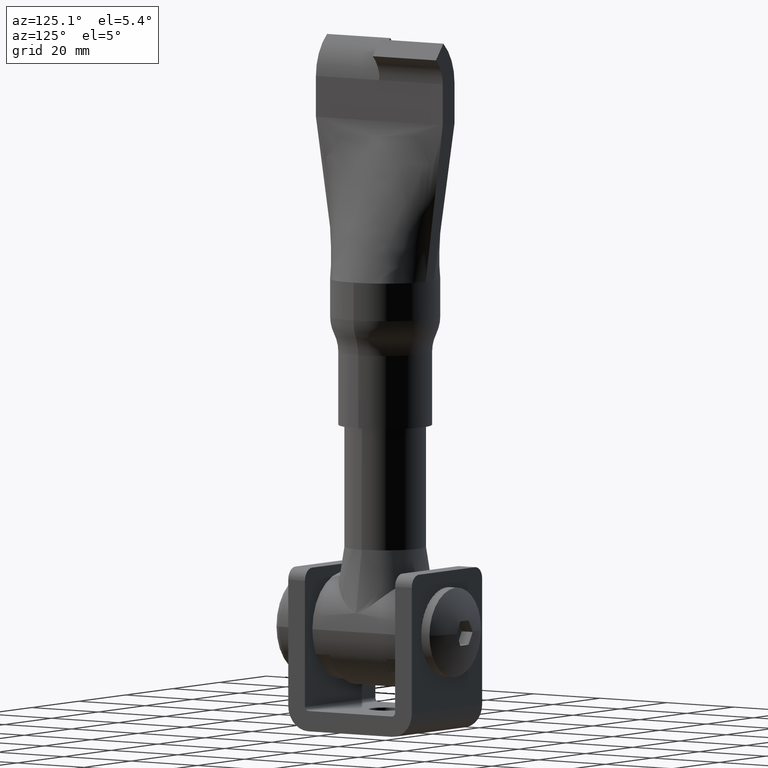
[diagram: clean part render]
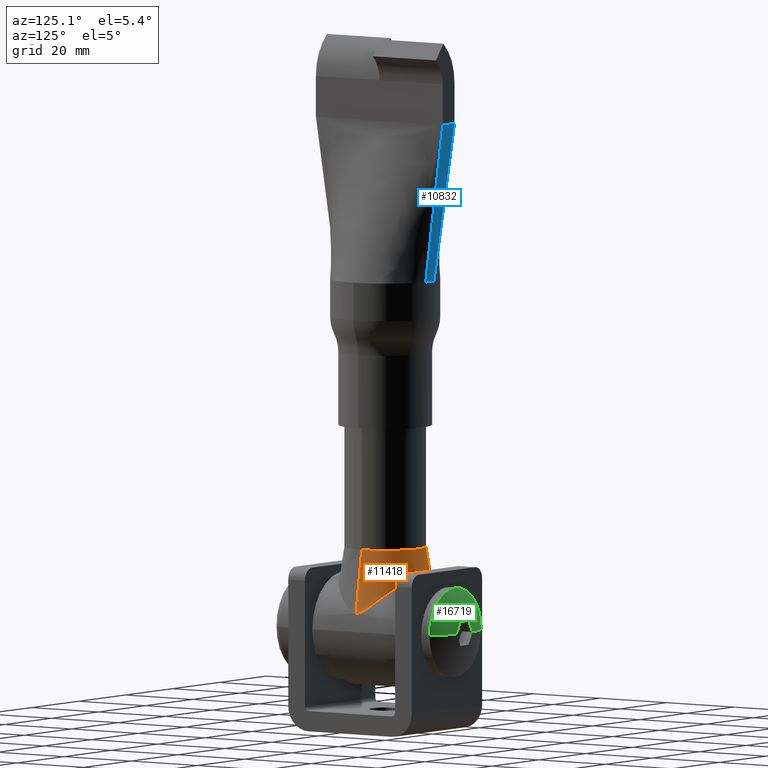
[diagram: same view with three faces highlighted in distinct colors, each labeled with its STEP entity id]
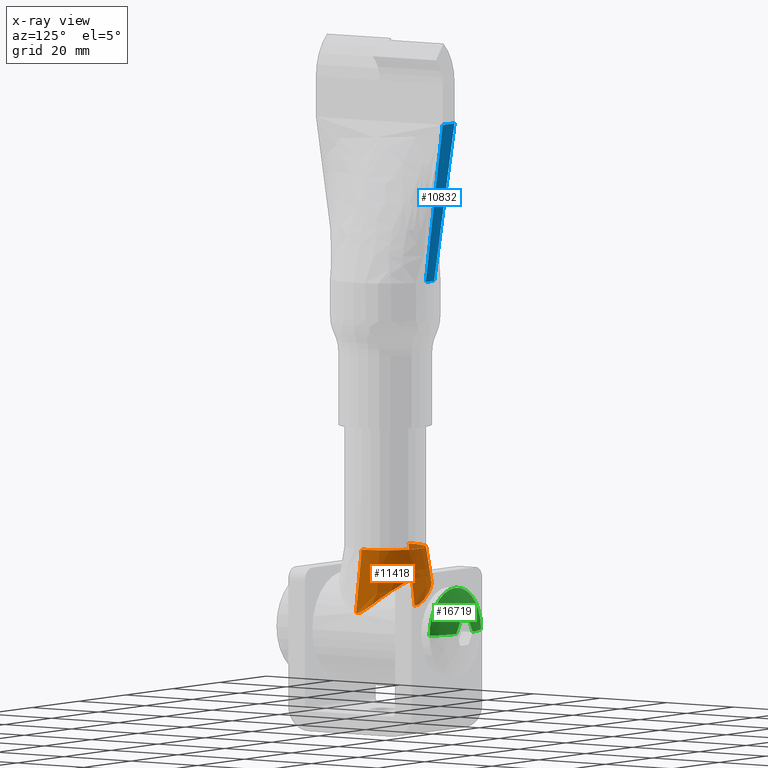
[diagram: x-ray of the same camera — body ghosted, the three highlighted faces saturated]
A machine part, auxiliary view with three faces highlighted in distinct colors.
The next image is the same camera in x-ray (body ghosted, the three faces saturated) — at least one of them is partly hidden behind the body in this view.
Their STEP definitions:

[orange] entity #11418 — the highlighted conical surface has half-angle 9 deg.
#932 = DIRECTION ( 'NONE',  ( 0.0000000000000000000, 0.0000000000000000000, 1.000000000000000000 ) ) ;
#1034 = EDGE_CURVE ( 'NONE', #21169, #16118, #8787, .T. ) ;
#1148 = ORIENTED_EDGE ( 'NONE', *, *, #19595, .T. ) ;
#1627 = CARTESIAN_POINT ( 'NONE',  ( -4.544602311022438300, 10.23950279378890100, 12.45280787592177800 ) ) ;
#1720 = CARTESIAN_POINT ( 'NONE',  ( 11.85100130225620100, 3.032713983077668800, 5.932775897503524300 ) ) ;
#1805 = CARTESIAN_POINT ( 'NONE',  ( -12.37406158305847500, 1.052926397505245600, 4.738526175261061000 ) ) ;
#1966 = CARTESIAN_POINT ( 'NONE',  ( -1.702063328757080800, 10.96232836810180100, 13.14722642212725200 ) ) ;
#2000 = CONICAL_SURFACE ( 'NONE', #16330, 10.00000000000000000, 0.1570796326794896800 ) ;
#2021 = CARTESIAN_POINT ( 'NONE',  ( 10.00000000000000000, 1.375698850997546000E-015, 19.99999999999999600 ) ) ;
#2409 = CARTESIAN_POINT ( 'NONE',  ( -10.00000000000000000, 0.0000000000000000000, 19.99999999999999600 ) ) ;
#2950 = DIRECTION ( 'NONE',  ( 1.000000000000000000, 0.0000000000000000000, 0.0000000000000000000 ) ) ;
#3076 = CARTESIAN_POINT ( 'NONE',  ( 12.43911753200677900, 0.4306870222003687000, 4.564412944056313900 ) ) ;
#3459 = VECTOR ( 'NONE', #6553, 1000.000000000000100 ) ;
#3663 = CARTESIAN_POINT ( 'NONE',  ( 3.379083786455900000, 10.62050229693041500, 12.81851273243222200 ) ) ;
#3743 = CARTESIAN_POINT ( 'NONE',  ( 9.749299883875007600, 6.581437989504199700, 8.996670868655371600 ) ) ;
#3825 = CARTESIAN_POINT ( 'NONE',  ( -12.40118306219043200, 0.8511746355173379600, 4.666485576060408900 ) ) ;
#3921 = CARTESIAN_POINT ( 'NONE',  ( 7.632689427067562700, 8.544716724632424500, 10.83688003451869100 ) ) ;
#4991 = CARTESIAN_POINT ( 'NONE',  ( 0.0000000000000000000, 0.0000000000000000000, 19.99999999999999600 ) ) ;
#5611 = CARTESIAN_POINT ( 'NONE',  ( 4.169486162967779700, 10.37587073809969600, 12.58363465157171600 ) ) ;
#5617 = ORIENTED_EDGE ( 'NONE', *, *, #14011, .F. ) ;
#5693 = CARTESIAN_POINT ( 'NONE',  ( 11.11800695409796600, 4.594444846856689900, 7.214234436448496300 ) ) ;
#5776 = CARTESIAN_POINT ( 'NONE',  ( 11.43773829093140600, 3.984819594758262100, 6.695774781425341400 ) ) ;
#5866 = CARTESIAN_POINT ( 'NONE',  ( 12.17782149461388600, 2.006033526576112000, 5.222684250916954000 ) ) ;
#5942 = CARTESIAN_POINT ( 'NONE',  ( -0.4203119860905667500, 11.06935778057705000, 13.25025303075430600 ) ) ;
#6553 = DIRECTION ( 'NONE',  ( -0.1564344650402308700, 0.0000000000000000000, -0.9876883405951376600 ) ) ;
#6602 = DIRECTION ( 'NONE',  ( 0.1564344650402308700, 1.915769668878472600E-017, -0.9876883405951376600 ) ) ;
#7611 = CARTESIAN_POINT ( 'NONE',  ( -3.365384237734505100, 10.62426435244011300, 12.82212734717941400 ) ) ;
#7701 = CARTESIAN_POINT ( 'NONE',  ( 4.558222001590339200, 10.23427922351712000, 12.44779954136557300 ) ) ;
#7789 = CARTESIAN_POINT ( 'NONE',  ( 1.723670346428816300, 10.95948449436491300, 13.14448953044926000 ) ) ;
#7867 = CARTESIAN_POINT ( 'NONE',  ( -12.44915803111114100, -1.275259665170314500E-017, 4.536624771393487500 ) ) ;
#7902 = LINE ( 'NONE', #14573, #9808 ) ;
#7944 = CARTESIAN_POINT ( 'NONE',  ( -2.960376318592690600, 10.72814672598309800, 12.92197909329218700 ) ) ;
#8787 = LINE ( 'NONE', #2409, #3459 ) ;
#8961 = CARTESIAN_POINT ( 'NONE',  ( 12.37355025305598700, 1.056222416335309100, 4.739852601841631600 ) ) ;
#9051 = DIRECTION ( 'NONE',  ( -1.000000000000000000, 0.0000000000000000000, 0.0000000000000000000 ) ) ;
#9636 = CARTESIAN_POINT ( 'NONE',  ( -6.358016981180973900, 9.399645714049253100, 11.64905286493261700 ) ) ;
#9717 = CARTESIAN_POINT ( 'NONE',  ( 10.94446728234588700, 4.893312337833277700, 7.475405305701738900 ) ) ;
#9802 = CARTESIAN_POINT ( 'NONE',  ( -5.670362507874533400, 9.769534460827573600, 12.00261745075507000 ) ) ;
#9808 = VECTOR ( 'NONE', #6602, 1000.000000000000100 ) ;
#9975 = CARTESIAN_POINT ( 'NONE',  ( -12.44915803111114300, 0.2145223900053378200, 4.536624771393484900 ) ) ;
#11177 = VERTEX_POINT ( 'NONE', #21585 ) ;
#11418 = ADVANCED_FACE ( 'NONE', ( #19605 ), #2000, .T. ) ;
#11662 = CARTESIAN_POINT ( 'NONE',  ( 12.26677646714259700, 1.637531410865290700, 5.010185849308629500 ) ) ;
#11743 = CARTESIAN_POINT ( 'NONE',  ( -10.94222508200098600, 4.897071790209802900, 7.478703330007135700 ) ) ;
#11834 = CARTESIAN_POINT ( 'NONE',  ( -11.58358415585231400, 3.675538042168864800, 6.439371375435133200 ) ) ;
#11918 = CARTESIAN_POINT ( 'NONE',  ( -12.27317210196075200, 1.643475486888445100, 4.996585639762596300 ) ) ;
#13520 = AXIS2_PLACEMENT_3D ( 'NONE', #4991, #932, #2950 ) ;
#13663 = CARTESIAN_POINT ( 'NONE',  ( 11.58436408618901900, 3.673678470798569200, 6.437901089228613900 ) ) ;
#13752 = CARTESIAN_POINT ( 'NONE',  ( -11.97288629929923200, 2.698192706927992300, 5.681366658108235200 ) ) ;
#13827 = CARTESIAN_POINT ( 'NONE',  ( -9.744454658413877400, 6.587235491668313800, 9.002012557989875300 ) ) ;
#13998 = CARTESIAN_POINT ( 'NONE',  ( 2.148712703025064100, 10.89392260614251400, 13.08139576489812800 ) ) ;
#14011 = EDGE_CURVE ( 'NONE', #23371, #21169, #17673, .T. ) ;
#14546 = ORIENTED_EDGE ( 'NONE', *, *, #1034, .F. ) ;
#14573 = CARTESIAN_POINT ( 'NONE',  ( 10.00000000000000000, 1.224646799147353300E-015, 19.99999999999999600 ) ) ;
#15118 = EDGE_CURVE ( 'NONE', #23371, #11177, #7902, .T. ) ;
#15386 = CARTESIAN_POINT ( 'NONE',  ( -10.00000000000000000, 0.0000000000000000000, 19.99999999999999600 ) ) ;
#15545 = ORIENTED_EDGE ( 'NONE', *, *, #15118, .T. ) ;
#15659 = CARTESIAN_POINT ( 'NONE',  ( 0.4361165969040643500, 11.06882726874792200, 13.24974225630710700 ) ) ;
#15747 = CARTESIAN_POINT ( 'NONE',  ( 10.57434586422092500, 5.473649158677838000, 7.990385355080641200 ) ) ;
#15828 = CARTESIAN_POINT ( 'NONE',  ( -10.57148351084965700, 5.477890078858866500, 7.994187239692665000 ) ) ;
#15908 = CARTESIAN_POINT ( 'NONE',  ( 12.12895916425058300, 2.183596132392616100, 5.335466131363846300 ) ) ;
#15989 = CARTESIAN_POINT ( 'NONE',  ( 10.37734821656450500, 5.755969445904070400, 8.244983488662962000 ) ) ;
#16118 = VERTEX_POINT ( 'NONE', #24813 ) ;
#16330 = AXIS2_PLACEMENT_3D ( 'NONE', #17196, #23094, #9051 ) ;
#16592 = B_SPLINE_CURVE_WITH_KNOTS ( 'NONE', 3,
 ( #20887, #18941, #3076, #20983, #8961, #25658, #11662, #5866, #15908, #23833, #1720, #13663, #5776, #5693, #9717, #15747, #15989, #3743, #17859, #21923, #25826, #3921, #17781, #19787, #25916, #7701, #5611, #3663, #19621, #13998, #7789, #19964, #15659, #5942, #17604, #1966, #21838, #7944, #7611, #21672, #1627, #9802, #9636, #26003, #17692, #23748, #19875, #19698, #13827, #21751, #15828, #11743, #23658, #25743, #11834, #17939, #13752, #21998, #11918, #1805, #3825, #23995, #9975, #7867 ),
 .UNSPECIFIED., .F., .F.,
 ( 4, 2, 2, 2, 2, 2, 2, 2, 2, 2, 2, 2, 2, 2, 2, 2, 2, 2, 2, 2, 2, 2, 2, 2, 2, 2, 2, 2, 2, 2, 2, 4 ),
 ( 0.03439975944442482500, 0.03504490267768117100, 0.03569004591093752300, 0.03633518914419386900, 0.03698033237745022200, 0.03827061884396291300, 0.03956090531047561100, 0.04085119177698830200, 0.04214147824350099300, 0.04472205117652637600, 0.04601233764303906700, 0.04730262410955175800, 0.04988319704257714700, 0.05117348350908984500, 0.05246376997560253700, 0.05375405644211523500, 0.05504434290862793300, 0.05633462937514062400, 0.05762491584165332200, 0.05891520230816602000, 0.06020548877467871200, 0.06278606170770410800, 0.06407634817421679900, 0.06536663464072949000, 0.06794720757375487300, 0.06923749404026757800, 0.07052778050678025500, 0.07181806697329296000, 0.07310835343980565100, 0.07439863990631834200, 0.07504378313957468800, 0.07568892637283103400 ),
 .UNSPECIFIED. ) ;
#17196 = CARTESIAN_POINT ( 'NONE',  ( 0.0000000000000000000, 0.0000000000000000000, 19.99999999999999600 ) ) ;
#17604 = CARTESIAN_POINT ( 'NONE',  ( -0.8479494261639357600, 11.04811586992837600, 13.22979833332498600 ) ) ;
#17673 = CIRCLE ( 'NONE', #13520, 10.00000000000000000 ) ;
#17692 = CARTESIAN_POINT ( 'NONE',  ( -7.618894259085204900, 8.554985190094381400, 10.84660503759502800 ) ) ;
#17781 = CARTESIAN_POINT ( 'NONE',  ( 7.325244609625274400, 8.766692929761765300, 11.04737267736309300 ) ) ;
#17859 = CARTESIAN_POINT ( 'NONE',  ( 9.281616774285350100, 7.103419363011359300, 9.481703932161824600 ) ) ;
#17939 = CARTESIAN_POINT ( 'NONE',  ( -11.85163571769692800, 3.031204204094160000, 5.931581274963413400 ) ) ;
#18941 = CARTESIAN_POINT ( 'NONE',  ( 12.44915803111113600, 0.2157087607531641100, 4.536624771393506200 ) ) ;
#19595 = EDGE_CURVE ( 'NONE', #11177, #16118, #16592, .T. ) ;
#19605 = FACE_OUTER_BOUND ( 'NONE', #20417, .T. ) ;
#19621 = CARTESIAN_POINT ( 'NONE',  ( 2.975150703248975200, 10.72455634560583900, 12.91852776948647200 ) ) ;
#19698 = CARTESIAN_POINT ( 'NONE',  ( -9.275236849363071900, 7.110343851025471700, 9.488142017753212100 ) ) ;
#19787 = CARTESIAN_POINT ( 'NONE',  ( 6.368606044278787500, 9.393688593002483600, 11.64336565200742300 ) ) ;
#19875 = CARTESIAN_POINT ( 'NONE',  ( -8.484738624681059000, 7.851939808246772400, 10.18306436496669900 ) ) ;
#19964 = CARTESIAN_POINT ( 'NONE',  ( 0.8649076925041238000, 11.04705664691415200, 13.22877844559714000 ) ) ;
#20417 = EDGE_LOOP ( 'NONE', ( #5617, #15545, #1148, #14546 ) ) ;
#20887 = CARTESIAN_POINT ( 'NONE',  ( 12.44915803111114100, 2.360536005491336700E-013, 4.536624771393484900 ) ) ;
#20983 = CARTESIAN_POINT ( 'NONE',  ( 12.40088927695417300, 0.8543144946209623200, 4.667274969365983000 ) ) ;
#21169 = VERTEX_POINT ( 'NONE', #15386 ) ;
#21585 = CARTESIAN_POINT ( 'NONE',  ( 12.44915803111114100, 2.360536005491336700E-013, 4.536624771393484900 ) ) ;
#21672 = CARTESIAN_POINT ( 'NONE',  ( -4.156693361537866100, 10.38029239099235400, 12.58787754440856200 ) ) ;
#21751 = CARTESIAN_POINT ( 'NONE',  ( -10.37408353264500400, 5.760541881130040800, 8.249116469581855100 ) ) ;
#21838 = CARTESIAN_POINT ( 'NONE',  ( -2.130265817175134300, 10.89711745661205600, 13.08446938868137900 ) ) ;
#21923 = CARTESIAN_POINT ( 'NONE',  ( 8.494737343217751800, 7.843017553764859400, 10.17467897872993100 ) ) ;
#21998 = CARTESIAN_POINT ( 'NONE',  ( -12.18324786456402200, 2.004107050142687600, 5.215017249291451100 ) ) ;
#23094 = DIRECTION ( 'NONE',  ( 0.0000000000000000000, 0.0000000000000000000, -1.000000000000000000 ) ) ;
#23371 = VERTEX_POINT ( 'NONE', #2021 ) ;
#23658 = CARTESIAN_POINT ( 'NONE',  ( -11.11588749870934300, 4.598252673918747000, 7.217524986328283100 ) ) ;
#23748 = CARTESIAN_POINT ( 'NONE',  ( -8.205903082456595500, 8.092483637210905900, 10.40958909727144600 ) ) ;
#23833 = CARTESIAN_POINT ( 'NONE',  ( 11.97112157041618600, 2.703269000038680300, 5.685080943511001900 ) ) ;
#23995 = CARTESIAN_POINT ( 'NONE',  ( -12.43888942536236200, 0.4330988604629942800, 4.565025611882914400 ) ) ;
#24813 = CARTESIAN_POINT ( 'NONE',  ( -12.44915803111114100, -1.275259665170314500E-017, 4.536624771393487500 ) ) ;
#25658 = CARTESIAN_POINT ( 'NONE',  ( 12.30660132044375600, 1.447493809192532700, 4.911060220740406400 ) ) ;
#25743 = CARTESIAN_POINT ( 'NONE',  ( -11.43637669999076700, 3.987646486991909700, 6.698127334422963500 ) ) ;
#25826 = CARTESIAN_POINT ( 'NONE',  ( 8.218124088460225400, 8.082226792692086500, 10.39992082851060000 ) ) ;
#25916 = CARTESIAN_POINT ( 'NONE',  ( 5.680992014961745400, 9.764148790134481000, 11.99746784438921300 ) ) ;
#26003 = CARTESIAN_POINT ( 'NONE',  ( -7.313316647115143200, 8.774989078569635800, 11.05524661709424300 ) ) ;

[blue] entity #10832 — the highlighted face is a freeform B-spline surface patch.
#335 = CARTESIAN_POINT ( 'NONE',  ( -2.507388640802862100, 19.05615367010175400, 75.39000000000001500 ) ) ;
#1185 = LINE ( 'NONE', #2078, #7800 ) ;
#1736 = FACE_OUTER_BOUND ( 'NONE', #2641, .T. ) ;
#1999 = CARTESIAN_POINT ( 'NONE',  ( 2.500000000000000900, 19.00000000000000000, 75.00000000000001400 ) ) ;
#2017 = VERTEX_POINT ( 'NONE', #23006 ) ;
#2078 = CARTESIAN_POINT ( 'NONE',  ( -2.130567959856863400, 16.19231649491217300, 55.50000000000000000 ) ) ;
#2087 = CARTESIAN_POINT ( 'NONE',  ( 1.777159706866394500, 13.32535443885124100, 35.60999999999999200 ) ) ;
#2259 = CARTESIAN_POINT ( 'NONE',  ( 1.179107328835583600, 13.46121569915041300, 36.00000000000000000 ) ) ;
#2641 = EDGE_LOOP ( 'NONE', ( #4389, #16749, #21418, #21072 ) ) ;
#3034 = CARTESIAN_POINT ( 'NONE',  ( 2.130567959856866500, 16.19231649491217000, 55.50000000000000000 ) ) ;
#3266 = CARTESIAN_POINT ( 'NONE',  ( 0.5886404376218117300, 13.49999746295985800, 36.00349496767643100 ) ) ;
#3274 = VECTOR ( 'NONE', #4894, 1000.000000000000200 ) ;
#3751 = EDGE_CURVE ( 'NONE', #7463, #18967, #1185, .T. ) ;
#3947 = CARTESIAN_POINT ( 'NONE',  ( 2.516833333333334400, 19.00000000000000000, 75.00000000000001400 ) ) ;
#4035 = CARTESIAN_POINT ( 'NONE',  ( 2.524272737694172700, 19.05616913980903600, 75.39000000000001500 ) ) ;
#4123 = CARTESIAN_POINT ( 'NONE',  ( -2.524105568418019800, 19.05616898664362000, 75.39000000000001500 ) ) ;
#4209 = CARTESIAN_POINT ( 'NONE',  ( -1.174231735457268200, 13.40582785614191900, 35.60999999999999200 ) ) ;
#4303 = CARTESIAN_POINT ( 'NONE',  ( 1.772892897249470900, 13.38308601909595400, 36.00000000000000000 ) ) ;
#4389 = ORIENTED_EDGE ( 'NONE', *, *, #12962, .T. ) ;
#4894 = DIRECTION ( 'NONE',  ( -0.01874855852282891100, -0.1424890447735001600, -0.9896187971501204700 ) ) ;
#5966 = CARTESIAN_POINT ( 'NONE',  ( -2.549999999999998900, 19.00000000000000000, 75.00000000000001400 ) ) ;
#6054 = CARTESIAN_POINT ( 'NONE',  ( 0.5895536644177928900, 13.49950705381344900, 36.00000000000000000 ) ) ;
#6057 = CARTESIAN_POINT ( 'NONE',  ( -2.499999999999999100, 19.00000000000000000, 75.00000000000001400 ) ) ;
#6144 = CARTESIAN_POINT ( 'NONE',  ( -1.788518211518080900, 13.32383840753742500, 35.60999999999999200 ) ) ;
#6319 = CARTESIAN_POINT ( 'NONE',  ( -0.8333333333333375900, 19.00000000000000000, 75.00000000000001400 ) ) ;
#7234 = CARTESIAN_POINT ( 'NONE',  ( -1.177068060633711800, 13.46148402509858700, 36.00000000808833500 ) ) ;
#7463 = VERTEX_POINT ( 'NONE', #21933 ) ;
#7800 = VECTOR ( 'NONE', #9822, 1000.000000000000100 ) ;
#7972 = CARTESIAN_POINT ( 'NONE',  ( -1.179107328835579100, 13.46121569915041300, 36.00000000000000000 ) ) ;
#8065 = CARTESIAN_POINT ( 'NONE',  ( -1.666666666666669200, 19.00000000000000000, 75.00000000000001400 ) ) ;
#8150 = CARTESIAN_POINT ( 'NONE',  ( -2.499999999999999100, 19.00000000000000000, 75.00000000000001400 ) ) ;
#8231 = CARTESIAN_POINT ( 'NONE',  ( -0.5871158677286330000, 13.44450212435158300, 35.60999999999999200 ) ) ;
#8323 = CARTESIAN_POINT ( 'NONE',  ( -1.753747278910865000, 13.32847931972258400, 35.60999999999999200 ) ) ;
#9335 = CARTESIAN_POINT ( 'NONE',  ( 1.761144577778942300, 13.38469859784188300, 36.00000000000000000 ) ) ;
#9822 = DIRECTION ( 'NONE',  ( -0.01874855852282897700, 0.1424890447735001300, 0.9896187971501205800 ) ) ;
#9998 = CARTESIAN_POINT ( 'NONE',  ( 1.666666666666663900, 19.00000000000000000, 75.00000000000001400 ) ) ;
#10081 = CARTESIAN_POINT ( 'NONE',  ( -1.772776491531290700, 13.38310133563782000, 36.00000000000000000 ) ) ;
#10140 = EDGE_CURVE ( 'NONE', #18967, #2017, #11504, .T. ) ;
#10259 = CARTESIAN_POINT ( 'NONE',  ( 2.507388640802863800, 19.05615367010175400, 75.39000000000001500 ) ) ;
#10346 = CARTESIAN_POINT ( 'NONE',  ( -0.5895536644177885600, 13.49950705381344900, 36.00000000000000000 ) ) ;
#10832 = ADVANCED_FACE ( 'NONE', ( #1736 ), #12349, .T. ) ;
#11100 = CARTESIAN_POINT ( 'NONE',  ( -0.5885240618760700900, 13.50000253678934700, 36.00349527898738000 ) ) ;
#11504 = LINE ( 'NONE', #6057, #14916 ) ;
#12026 = CARTESIAN_POINT ( 'NONE',  ( -1.796057635166416600, 13.38003802726477600, 36.00000000000000000 ) ) ;
#12117 = CARTESIAN_POINT ( 'NONE',  ( 1.788865920844157100, 13.32379199841557100, 35.60999999999999200 ) ) ;
#12206 = CARTESIAN_POINT ( 'NONE',  ( -0.8357711300224931500, 19.05500492946186600, 75.39000000000001500 ) ) ;
#12349 = B_SPLINE_SURFACE_WITH_KNOTS ( 'NONE', 3, 1, ( 
 ( #12117, #16187, #14281, #14101 ),
 ( #2087, #18311, #22281, #14027 ),
 ( #16099, #4303, #3947, #4035 ),
 ( #18062, #14191, #1999, #10259 ),
 ( #16012, #2259, #9998, #24288 ),
 ( #16274, #6054, #22108, #20071 ),
 ( #8231, #10346, #6319, #12206 ),
 ( #4209, #7972, #8065, #20338 ),
 ( #8323, #17968, #8150, #335 ),
 ( #22367, #10081, #24114, #4123 ),
 ( #22194, #18139, #22021, #14373 ),
 ( #6144, #12026, #5966, #24381 ) ),
 .UNSPECIFIED., .F., .F., .F.,
 ( 4, 3, 2, 3, 4 ),
 ( 2, 1, 1, 2 ),
 ( -0.01010000000000000000, 0.0000000000000000000, 0.5000000000000000000, 1.000000000000000000, 1.010000000000000000 ),
 ( -0.01000000000000000000, 0.0000000000000000000, 1.000000000000000000, 1.010000000000000000 ),
 .UNSPECIFIED. ) ;
#12499 = EDGE_CURVE ( 'NONE', #2017, #12949, #15193, .T. ) ;
#12949 = VERTEX_POINT ( 'NONE', #20995 ) ;
#12962 = EDGE_CURVE ( 'NONE', #12949, #7463, #20557, .T. ) ;
#14027 = CARTESIAN_POINT ( 'NONE',  ( 2.541156834585482000, 19.05618460951631800, 75.39000000000001500 ) ) ;
#14101 = CARTESIAN_POINT ( 'NONE',  ( 2.558040931476791300, 19.05620007922360100, 75.39000000000001500 ) ) ;
#14191 = CARTESIAN_POINT ( 'NONE',  ( 1.761135919713732200, 13.38463298982434000, 36.00000000000000000 ) ) ;
#14281 = CARTESIAN_POINT ( 'NONE',  ( 2.550500000000001800, 19.00000000000000000, 75.00000000000001400 ) ) ;
#14373 = CARTESIAN_POINT ( 'NONE',  ( -2.540822496033177600, 19.05618430318548600, 75.39000000000001500 ) ) ;
#14916 = VECTOR ( 'NONE', #19907, 1000.000000000000000 ) ;
#15193 = LINE ( 'NONE', #3034, #3274 ) ;
#16012 = CARTESIAN_POINT ( 'NONE',  ( 1.174231735457272700, 13.40582785614191900, 35.60999999999999200 ) ) ;
#16099 = CARTESIAN_POINT ( 'NONE',  ( 1.765453492888632100, 13.32691687928691200, 35.60999999999999200 ) ) ;
#16187 = CARTESIAN_POINT ( 'NONE',  ( 1.796406852320948200, 13.37999207763918000, 36.00000000000000000 ) ) ;
#16274 = CARTESIAN_POINT ( 'NONE',  ( 0.5871158677286374400, 13.44450212435158300, 35.60999999999999200 ) ) ;
#16749 = ORIENTED_EDGE ( 'NONE', *, *, #3751, .T. ) ;
#17968 = CARTESIAN_POINT ( 'NONE',  ( -1.761135919713727700, 13.38463298982434100, 36.00000000000000000 ) ) ;
#18062 = CARTESIAN_POINT ( 'NONE',  ( 1.753747278910869500, 13.32847931972258200, 35.60999999999999200 ) ) ;
#18139 = CARTESIAN_POINT ( 'NONE',  ( -1.784417063348853600, 13.38156968145129800, 36.00000000000000000 ) ) ;
#18311 = CARTESIAN_POINT ( 'NONE',  ( 1.784649874785209500, 13.38153904836756600, 36.00000000000000000 ) ) ;
#18967 = VERTEX_POINT ( 'NONE', #19673 ) ;
#19673 = CARTESIAN_POINT ( 'NONE',  ( -2.499999999999999100, 19.00000000000000000, 75.00000000000001400 ) ) ;
#19907 = DIRECTION ( 'NONE',  ( 1.000000000000000000, 0.0000000000000000000, 0.0000000000000000000 ) ) ;
#20071 = CARTESIAN_POINT ( 'NONE',  ( 0.8357711300224844900, 19.05500492946186600, 75.39000000000001500 ) ) ;
#20338 = CARTESIAN_POINT ( 'NONE',  ( -1.671542260044980100, 19.05538784300849600, 75.39000000000001500 ) ) ;
#20557 = B_SPLINE_CURVE_WITH_KNOTS ( 'NONE', 3,
 ( #9335, #25018, #3266, #11100, #7234, #25104 ),
 .UNSPECIFIED., .F., .F.,
 ( 4, 2, 4 ),
 ( 0.0000000000000000000, 0.001765403049132493000, 0.003530806098264986000 ),
 .UNSPECIFIED. ) ;
#20995 = CARTESIAN_POINT ( 'NONE',  ( 1.761144577778942300, 13.38469859784188300, 36.00000000000000000 ) ) ;
#21072 = ORIENTED_EDGE ( 'NONE', *, *, #12499, .T. ) ;
#21418 = ORIENTED_EDGE ( 'NONE', *, *, #10140, .T. ) ;
#21933 = CARTESIAN_POINT ( 'NONE',  ( -1.761143528651909700, 13.38469061141069500, 36.00000000000000000 ) ) ;
#22021 = CARTESIAN_POINT ( 'NONE',  ( -2.533333333333332300, 19.00000000000000000, 75.00000000000001400 ) ) ;
#22108 = CARTESIAN_POINT ( 'NONE',  ( 0.8333333333333290400, 19.00000000000000000, 75.00000000000001400 ) ) ;
#22194 = CARTESIAN_POINT ( 'NONE',  ( -1.776927900649008900, 13.32538537826581200, 35.60999999999999200 ) ) ;
#22281 = CARTESIAN_POINT ( 'NONE',  ( 2.533666666666667800, 19.00000000000000000, 75.00000000000001400 ) ) ;
#22367 = CARTESIAN_POINT ( 'NONE',  ( -1.765337589779937000, 13.32693234899419800, 35.60999999999999200 ) ) ;
#23006 = CARTESIAN_POINT ( 'NONE',  ( 2.500000000000000900, 19.00000000000000000, 74.99999999999998600 ) ) ;
#24114 = CARTESIAN_POINT ( 'NONE',  ( -2.516666666666665700, 19.00000000000000000, 75.00000000000001400 ) ) ;
#24288 = CARTESIAN_POINT ( 'NONE',  ( 1.671542260044974700, 19.05538784300849600, 75.39000000000001500 ) ) ;
#24381 = CARTESIAN_POINT ( 'NONE',  ( -2.557539423648335300, 19.05619961972734800, 75.39000000000001500 ) ) ;
#25018 = CARTESIAN_POINT ( 'NONE',  ( 1.177067929049560000, 13.46148404233726700, 36.00000000757594900 ) ) ;
#25104 = CARTESIAN_POINT ( 'NONE',  ( -1.761143528651909700, 13.38469061141069500, 36.00000000000000000 ) ) ;

[green] entity #16719 — the highlighted spherical surface has radius 21.6667 mm.
#406 = ORIENTED_EDGE ( 'NONE', *, *, #12637, .F. ) ;
#571 = EDGE_CURVE ( 'NONE', #10039, #1698, #23573, .T. ) ;
#651 = EDGE_CURVE ( 'NONE', #6412, #11466, #3478, .T. ) ;
#960 = CARTESIAN_POINT ( 'NONE',  ( -10.99999999999999100, 17.00000000000000400, 1.347111479062087400E-015 ) ) ;
#1298 = DIRECTION ( 'NONE',  ( -0.0000000000000000000, -1.000000000000000000, -0.0000000000000000000 ) ) ;
#1698 = VERTEX_POINT ( 'NONE', #15800 ) ;
#2429 = DIRECTION ( 'NONE',  ( 1.000000000000000000, 0.0000000000000000000, 0.0000000000000000000 ) ) ;
#2519 = EDGE_CURVE ( 'NONE', #1698, #4796, #3727, .T. ) ;
#2551 = ORIENTED_EDGE ( 'NONE', *, *, #23631, .F. ) ;
#3148 = SPHERICAL_SURFACE ( 'NONE', #10671, 21.66666666666666100 ) ;
#3478 = CIRCLE ( 'NONE', #17407, 21.66666666666666100 ) ;
#3560 = CARTESIAN_POINT ( 'NONE',  ( -2.598076211353316000, -1.666666666666661900, 1.499999999999999600 ) ) ;
#3570 = AXIS2_PLACEMENT_3D ( 'NONE', #5803, #23938, #19817 ) ;
#3719 = ORIENTED_EDGE ( 'NONE', *, *, #651, .T. ) ;
#3727 = CIRCLE ( 'NONE', #12570, 21.45796925257477000 ) ;
#4796 = VERTEX_POINT ( 'NONE', #24934 ) ;
#5723 = CARTESIAN_POINT ( 'NONE',  ( -1.732050807568877000, 19.72128425071773700, 3.000000000000000000 ) ) ;
#5777 = ORIENTED_EDGE ( 'NONE', *, *, #10759, .F. ) ;
#5803 = CARTESIAN_POINT ( 'NONE',  ( 0.0000000000000000000, -1.666666666666661900, 0.0000000000000000000 ) ) ;
#5843 = CIRCLE ( 'NONE', #3570, 21.66666666666666100 ) ;
#6412 = VERTEX_POINT ( 'NONE', #22965 ) ;
#6512 = ORIENTED_EDGE ( 'NONE', *, *, #2519, .F. ) ;
#7438 = DIRECTION ( 'NONE',  ( 0.4999999999999999400, -1.242958880647248600E-014, 0.8660254037844387100 ) ) ;
#7607 = AXIS2_PLACEMENT_3D ( 'NONE', #19564, #21782, #15933 ) ;
#7772 = CARTESIAN_POINT ( 'NONE',  ( 0.0000000000000000000, -1.666666666666661900, 0.0000000000000000000 ) ) ;
#7928 = DIRECTION ( 'NONE',  ( 1.000000000000000000, 0.0000000000000000000, -1.224646799147353200E-016 ) ) ;
#10039 = VERTEX_POINT ( 'NONE', #5723 ) ;
#10671 = AXIS2_PLACEMENT_3D ( 'NONE', #14445, #20423, #2429 ) ;
#10759 = EDGE_CURVE ( 'NONE', #4796, #18365, #5843, .T. ) ;
#10771 = EDGE_CURVE ( 'NONE', #25456, #11466, #13354, .T. ) ;
#11011 = AXIS2_PLACEMENT_3D ( 'NONE', #11328, #1298, #25498 ) ;
#11328 = CARTESIAN_POINT ( 'NONE',  ( 0.0000000000000000000, 17.00000000000000000, 0.0000000000000000000 ) ) ;
#11466 = VERTEX_POINT ( 'NONE', #960 ) ;
#11726 = DIRECTION ( 'NONE',  ( 1.224646799147353200E-016, -0.0000000000000000000, 1.000000000000000000 ) ) ;
#12570 = AXIS2_PLACEMENT_3D ( 'NONE', #18493, #14457, #16191 ) ;
#12637 = EDGE_CURVE ( 'NONE', #6412, #10039, #13293, .T. ) ;
#13293 = CIRCLE ( 'NONE', #18686, 21.45796925257476700 ) ;
#13354 = CIRCLE ( 'NONE', #7607, 10.99999999999999100 ) ;
#14445 = CARTESIAN_POINT ( 'NONE',  ( 0.0000000000000000000, -1.666666666666661900, 0.0000000000000000000 ) ) ;
#14457 = DIRECTION ( 'NONE',  ( -0.8660254037844388200, -0.0000000000000000000, -0.5000000000000000000 ) ) ;
#14698 = AXIS2_PLACEMENT_3D ( 'NONE', #23894, #21650, #23731 ) ;
#15800 = CARTESIAN_POINT ( 'NONE',  ( 1.732050807568878700, 19.72128425071773700, 3.000000000000000000 ) ) ;
#15933 = DIRECTION ( 'NONE',  ( 0.0000000000000000000, 0.0000000000000000000, -1.000000000000000000 ) ) ;
#16191 = DIRECTION ( 'NONE',  ( 0.4999999999999999400, -1.954375996074616400E-014, -0.8660254037844387100 ) ) ;
#16657 = EDGE_LOOP ( 'NONE', ( #406, #3719, #18575, #2551, #5777, #6512, #24520 ) ) ;
#16719 = ADVANCED_FACE ( 'NONE', ( #17272 ), #3148, .T. ) ;
#17272 = FACE_OUTER_BOUND ( 'NONE', #16657, .T. ) ;
#17407 = AXIS2_PLACEMENT_3D ( 'NONE', #7772, #11726, #7928 ) ;
#18100 = CIRCLE ( 'NONE', #11011, 10.99999999999999100 ) ;
#18365 = VERTEX_POINT ( 'NONE', #24795 ) ;
#18493 = CARTESIAN_POINT ( 'NONE',  ( 2.598076211353316900, -1.666666666666661900, 1.500000000000000000 ) ) ;
#18575 = ORIENTED_EDGE ( 'NONE', *, *, #10771, .F. ) ;
#18686 = AXIS2_PLACEMENT_3D ( 'NONE', #3560, #19270, #7438 ) ;
#19270 = DIRECTION ( 'NONE',  ( 0.8660254037844387100, -0.0000000000000000000, -0.4999999999999999400 ) ) ;
#19564 = CARTESIAN_POINT ( 'NONE',  ( 0.0000000000000000000, 17.00000000000000000, 0.0000000000000000000 ) ) ;
#19817 = DIRECTION ( 'NONE',  ( -1.000000000000000000, 0.0000000000000000000, 0.0000000000000000000 ) ) ;
#20423 = DIRECTION ( 'NONE',  ( 0.0000000000000000000, 0.0000000000000000000, 1.000000000000000000 ) ) ;
#21650 = DIRECTION ( 'NONE',  ( 0.0000000000000000000, -0.0000000000000000000, -1.000000000000000000 ) ) ;
#21782 = DIRECTION ( 'NONE',  ( -0.0000000000000000000, -1.000000000000000000, -0.0000000000000000000 ) ) ;
#22965 = CARTESIAN_POINT ( 'NONE',  ( -3.464101615137754800, 19.72128425071773700, -6.505213034913026600E-016 ) ) ;
#23319 = CARTESIAN_POINT ( 'NONE',  ( 1.347111479062087800E-015, 17.00000000000000000, 10.99999999999999100 ) ) ;
#23573 = CIRCLE ( 'NONE', #14698, 21.45796925257476700 ) ;
#23631 = EDGE_CURVE ( 'NONE', #18365, #25456, #18100, .T. ) ;
#23731 = DIRECTION ( 'NONE',  ( 1.000000000000000000, -1.242958880647248600E-014, 0.0000000000000000000 ) ) ;
#23894 = CARTESIAN_POINT ( 'NONE',  ( 0.0000000000000000000, -1.666666666666661900, 3.000000000000000000 ) ) ;
#23938 = DIRECTION ( 'NONE',  ( 0.0000000000000000000, 0.0000000000000000000, -1.000000000000000000 ) ) ;
#24520 = ORIENTED_EDGE ( 'NONE', *, *, #571, .F. ) ;
#24795 = CARTESIAN_POINT ( 'NONE',  ( 10.99999999999999100, 17.00000000000000400, 0.0000000000000000000 ) ) ;
#24934 = CARTESIAN_POINT ( 'NONE',  ( 3.464101615137755700, 19.72128425071773700, 6.505213034913026600E-016 ) ) ;
#25456 = VERTEX_POINT ( 'NONE', #23319 ) ;
#25498 = DIRECTION ( 'NONE',  ( 0.0000000000000000000, 0.0000000000000000000, -1.000000000000000000 ) ) ;